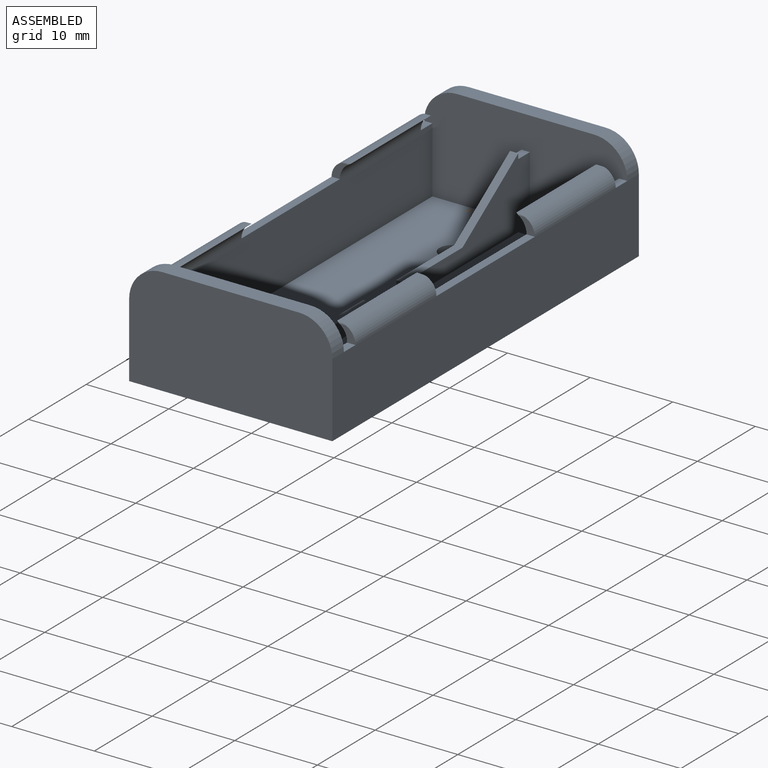
[diagram: assembled view]
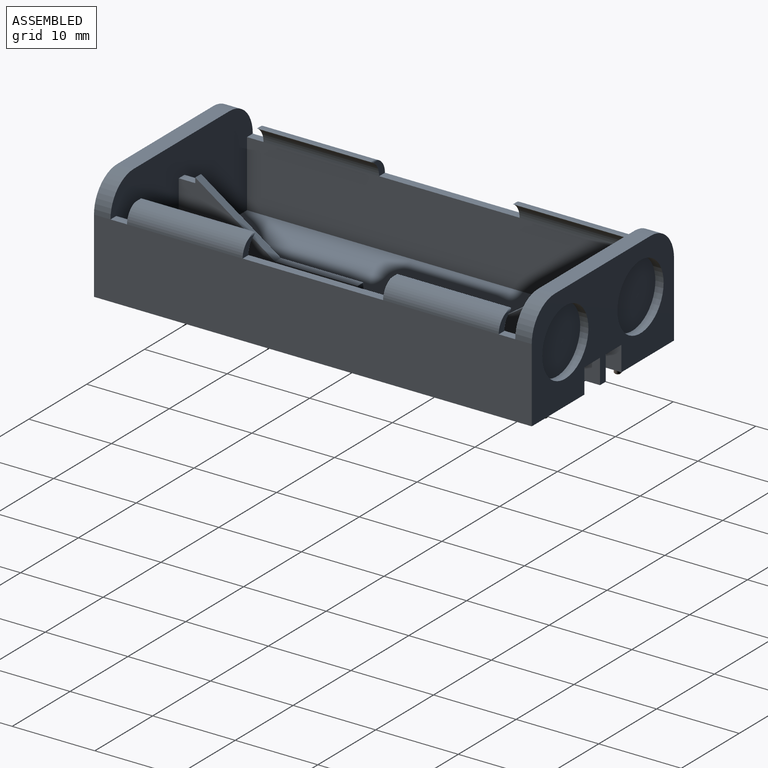
[diagram: assembled view, second angle]
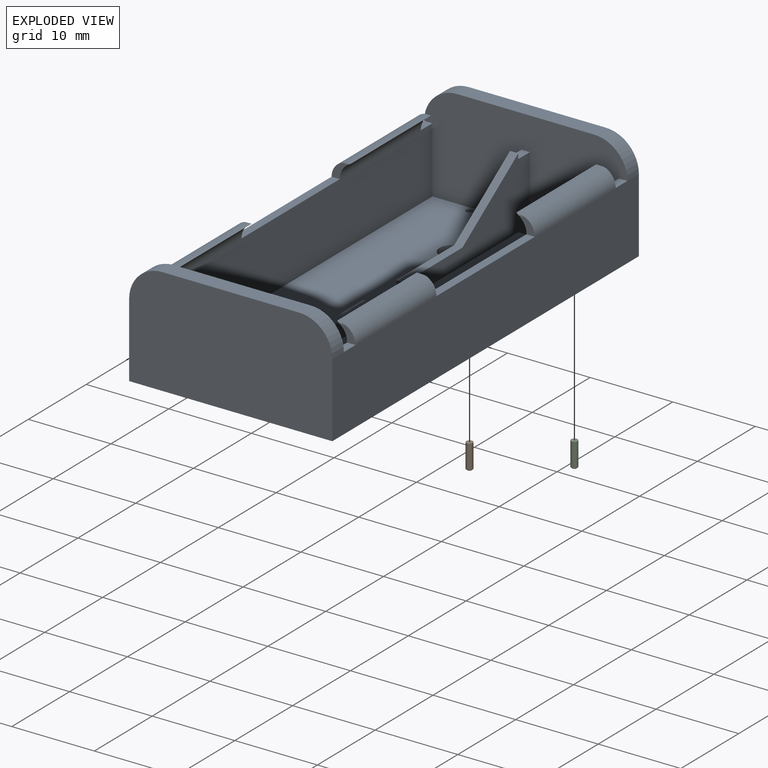
[diagram: exploded view]
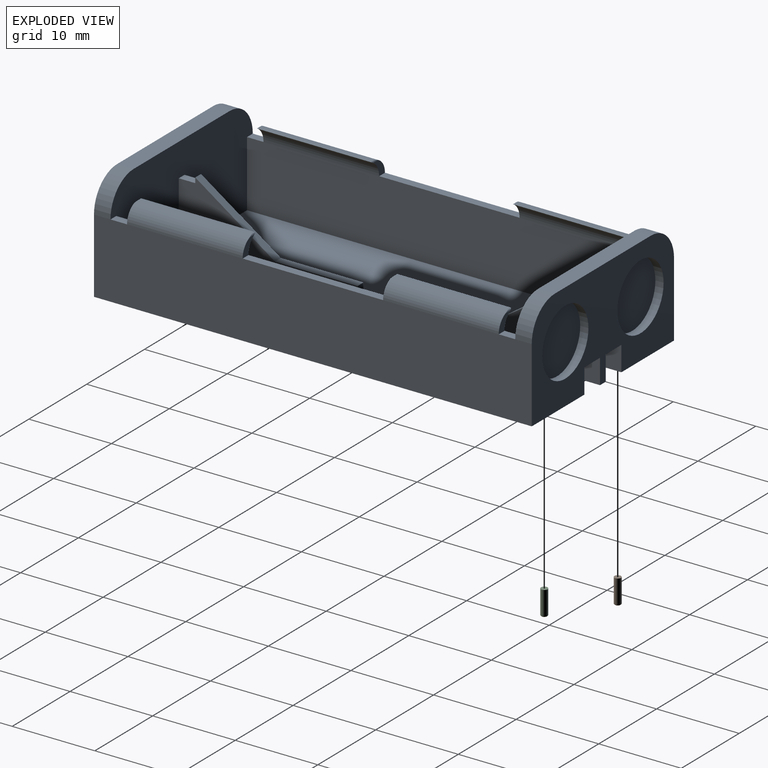
[diagram: exploded view, second angle]
ASSEMBLY  parts=3 mates=2
PART A: 75 faces, bbox 24.6x53x13 mm
  f0: plane 53x24.6mm, normal (0,0,-1), area 1260mm2, adj f13,f19,f20,f22,f25,f26,f27,f35
  f1: plane 49x22.6mm, normal (0,0,1), area 1031.1mm2, adj f11,f12,f23,f24,f25,f26,f27,f28
  f2: plane 9.65x6.63mm, normal (0,-0.57,0.82), area 11.7mm2, adj f34,f35,f36,f69
  f3: cylinder r=2.02mm len=14mm, axis (0,1,0), area 48.1mm2, adj f5,f20,f64,f65,f66,f67
  f4: cylinder r=2.02mm len=14mm, axis (0,1,0), area 48.1mm2, adj f6,f20,f59,f60,f61,f62
  f5: cylinder r=2.19mm len=14mm, axis (0,1,0), area 35.3mm2, adj f3,f24,f64,f65,f66,f67
  f6: cylinder r=2.19mm len=14mm, axis (0,1,0), area 35.3mm2, adj f4,f24,f59,f60,f61,f62
  f7: cylinder r=2.02mm len=14mm, axis (0,1,0), area 48.1mm2, adj f9,f19,f53,f54,f55,f56
  f8: cylinder r=2.02mm len=14mm, axis (0,1,0), area 48.1mm2, adj f10,f19,f48,f49,f50,f51
  f9: cylinder r=2.19mm len=14mm, axis (0,1,0), area 35.3mm2, adj f7,f23,f53,f54,f55,f56
  f10: cylinder r=2.19mm len=14mm, axis (0,1,0), area 35.3mm2, adj f8,f23,f48,f49,f50,f51
  f11: plane 24.6x12mm, normal (0,-1,0), area 253.5mm2, adj f1,f14,f15,f16,f23,f24,f35,f36
  f12: plane 24.6x12mm, normal (0,1,0), area 264.3mm2, adj f1,f17,f18,f21,f23,f24,f31,f32
  f13: plane 24.6x13mm, normal (0,1,0), area 196.2mm2, adj f0,f14,f15,f16,f19,f20,f35,f36
  f14: cylinder r=4mm len=4mm, axis (0,1,0), area 12.6mm2, adj f11,f13,f16,f20
  f15: cylinder r=4mm len=4mm, axis (0,1,0), area 12.6mm2, adj f11,f13,f16,f19
  f16: plane 16.6x2mm, normal (0,0,1), area 33.2mm2, adj f11,f13,f14,f15
  f17: plane 16.6x2mm, normal (0,0,1), area 33.2mm2, adj f12,f18,f21,f22
  f18: cylinder r=4mm len=4mm, axis (0,1,0), area 12.6mm2, adj f12,f17,f19,f22
  f19: plane 53x9mm, normal (-1,0,0), area 477mm2, adj f0,f7,f8,f13,f15,f18,f22,f47
  f20: plane 53x9mm, normal (1,0,0), area 477mm2, adj f0,f3,f4,f13,f14,f21,f22,f58
  f21: cylinder r=4mm len=4mm, axis (0,1,0), area 12.6mm2, adj f12,f17,f20,f22
  f22: plane 24.6x13mm, normal (0,-1,0), area 312.9mm2, adj f0,f17,f18,f19,f20,f21
  f23: plane 49x8mm, normal (1,0,0), area 392mm2, adj f1,f9,f10,f11,f12,f47,f52,f57
  f24: plane 49x8mm, normal (-1,0,0), area 392mm2, adj f1,f5,f6,f11,f12,f58,f63,f68
  f25: cylinder r=1.5mm len=3mm, axis (0,0,-1), area 9.4mm2, adj f0,f1
  f26: cylinder r=1.5mm len=3mm, axis (0,0,-1), area 9.4mm2, adj f0,f1
  f27: cylinder r=1.5mm len=3mm, axis (0,0,-1), area 9.4mm2, adj f0,f1
  f28: plane 2x1mm, normal (0,1,0), area 2mm2, adj f1,f29,f31,f32
  f29: plane 10x1mm, normal (0,0,1), area 10mm2, adj f28,f30,f31,f32
  f30: plane 9.65x6.63mm, normal (0,0.57,0.82), area 11.7mm2, adj f29,f31,f32,f71
  f31: plane 21.65x8.63mm, normal (1,0,0), area 87.3mm2, adj f1,f12,f28,f29,f30,f71,f72
  f32: plane 21.65x8.63mm, normal (-1,0,0), area 87.3mm2, adj f1,f12,f28,f29,f30,f71,f72
  f33: plane 2x1mm, normal (0,-1,0), area 2mm2, adj f1,f34,f35,f36
  f34: plane 10x1mm, normal (0,0,1), area 10mm2, adj f2,f33,f35,f36
  f35: plane 23.65x9.63mm, normal (1,0,0), area 95.3mm2, adj f0,f1,f2,f11,f13,f33,f34,f44
  f36: plane 23.65x9.63mm, normal (-1,0,0), area 95.3mm2, adj f0,f1,f2,f11,f13,f33,f34,f41
  f37: cylinder r=4mm len=8mm, axis (0,1,0), area 25.1mm2, adj f13,f38
  f38: plane 8x8mm, normal (0,1,0), area 50.3mm2, adj f37
  f39: cylinder r=4mm len=8mm, axis (0,1,0), area 25.1mm2, adj f13,f40
  f40: plane 8x8mm, normal (0,1,0), area 50.3mm2, adj f39
  f41: plane 2.7x1mm, normal (0,1,0), area 2.7mm2, adj f0,f1,f36,f42
  f42: plane 4x3mm, normal (1,0,0), area 8mm2, adj f0,f1,f11,f13,f41,f43
  f43: plane 2.7x2mm, normal (0,0,-1), area 5.4mm2, adj f11,f13,f36,f42
  f44: plane 2.7x1mm, normal (0,1,0), area 2.7mm2, adj f0,f1,f35,f45
  f45: plane 4x3mm, normal (-1,0,0), area 8mm2, adj f0,f1,f11,f13,f44,f46
  f46: plane 2.7x2mm, normal (0,0,-1), area 5.4mm2, adj f11,f13,f35,f45
  f47: plane 2x1mm, normal (0,0,1), area 2mm2, adj f12,f19,f23,f48
  f48: plane 1.97x1.82mm, normal (0,-1,0), area 1.8mm2, adj f8,f10,f47,f49
  f49: cylinder r=0.2mm len=1.16mm, axis (1,0,0), area 0.2mm2, adj f8,f10,f48
  f50: cylinder r=0.2mm len=1.16mm, axis (1,0,0), area 0.2mm2, adj f8,f10,f51
  f51: plane 1.97x1.82mm, normal (0,1,0), area 1.8mm2, adj f8,f10,f50,f52
  f52: plane 17x1mm, normal (0,0,1), area 17mm2, adj f19,f23,f51,f53
  f53: plane 1.97x1.82mm, normal (0,-1,0), area 1.8mm2, adj f7,f9,f52,f54
  f54: cylinder r=0.2mm len=1.16mm, axis (1,0,0), area 0.2mm2, adj f7,f9,f53
  f55: cylinder r=0.2mm len=1.16mm, axis (1,0,0), area 0.2mm2, adj f7,f9,f56
  f56: plane 1.97x1.82mm, normal (0,1,0), area 1.8mm2, adj f7,f9,f55,f57
  f57: plane 2x1mm, normal (0,0,1), area 2mm2, adj f11,f19,f23,f56
  f58: plane 2x1mm, normal (0,0,1), area 2mm2, adj f12,f20,f24,f59
  f59: plane 1.97x1.82mm, normal (0,-1,0), area 1.8mm2, adj f4,f6,f58,f60
  f60: cylinder r=0.2mm len=1.16mm, axis (1,0,0), area 0.2mm2, adj f4,f6,f59
  f61: cylinder r=0.2mm len=1.16mm, axis (1,0,0), area 0.2mm2, adj f4,f6,f62
  f62: plane 1.97x1.82mm, normal (0,1,0), area 1.8mm2, adj f4,f6,f61,f63
  f63: plane 17x1mm, normal (0,0,1), area 17mm2, adj f20,f24,f62,f64
  f64: plane 1.97x1.82mm, normal (0,-1,0), area 1.8mm2, adj f3,f5,f63,f65
  f65: cylinder r=0.2mm len=1.16mm, axis (1,0,0), area 0.2mm2, adj f3,f5,f64
  f66: cylinder r=0.2mm len=1.16mm, axis (1,0,0), area 0.2mm2, adj f3,f5,f67
  f67: plane 1.97x1.82mm, normal (0,1,0), area 1.8mm2, adj f3,f5,f66,f68
  f68: plane 2x1mm, normal (0,0,1), area 2mm2, adj f11,f20,f24,f67
  f69: plane 1x0.63mm, normal (0,1,0), area 0.6mm2, adj f2,f35,f36,f70
  f70: plane 2x1mm, normal (0,0,1), area 2mm2, adj f11,f35,f36,f69
  f71: plane 1x0.63mm, normal (0,-1,0), area 0.6mm2, adj f30,f31,f32,f72
  f72: plane 2x1mm, normal (0,0,1), area 2mm2, adj f12,f31,f32,f71
  f73: cylinder r=0.4mm len=1mm, axis (0,0,-1), area 2.5mm2, adj f0,f1
  f74: cylinder r=0.4mm len=1mm, axis (0,0,-1), area 2.5mm2, adj f0,f1
PART B: 4 faces, bbox 0.8x0.8x3 mm
  f0: cylinder r=0.4mm len=2.9mm, axis (0,0,-1), area 7.3mm2, adj f1,f3
  f1: plane 0.8x0.8mm, normal (0,0,1), area 0.5mm2, adj f0
  f2: plane 0.6x0.6mm, normal (0,0,-1), area 0.3mm2, adj f3
  f3: cone r=0.4mm half-angle=45deg, axis (0,0,1), area 0.3mm2, adj f0,f2
PART C: same geometry as B
PLACE A t=(0.04,0.03,-6.49)mm
PLACE B t=(18.22,0.01,-8.49)mm
PLACE C t=(30.92,0.01,-8.49)mm
MATE fastened C.f0 <-> A.f74  axis (0,0,1) through (6.39,23.88,-5.49)mm
MATE fastened B.f0 <-> A.f73  axis (0,0,1) through (-6.31,23.88,-5.49)mm
